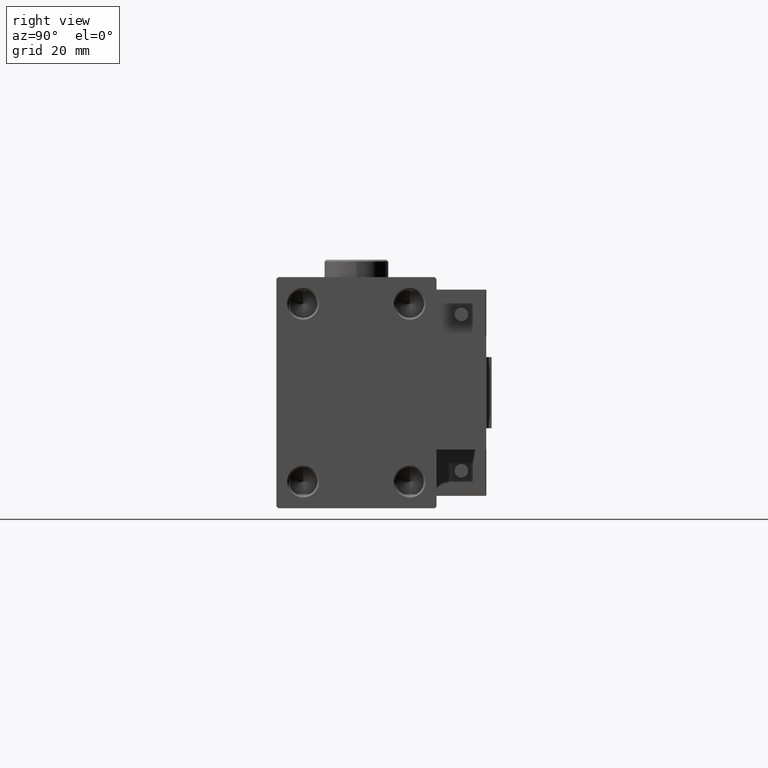
[diagram: clean part render]
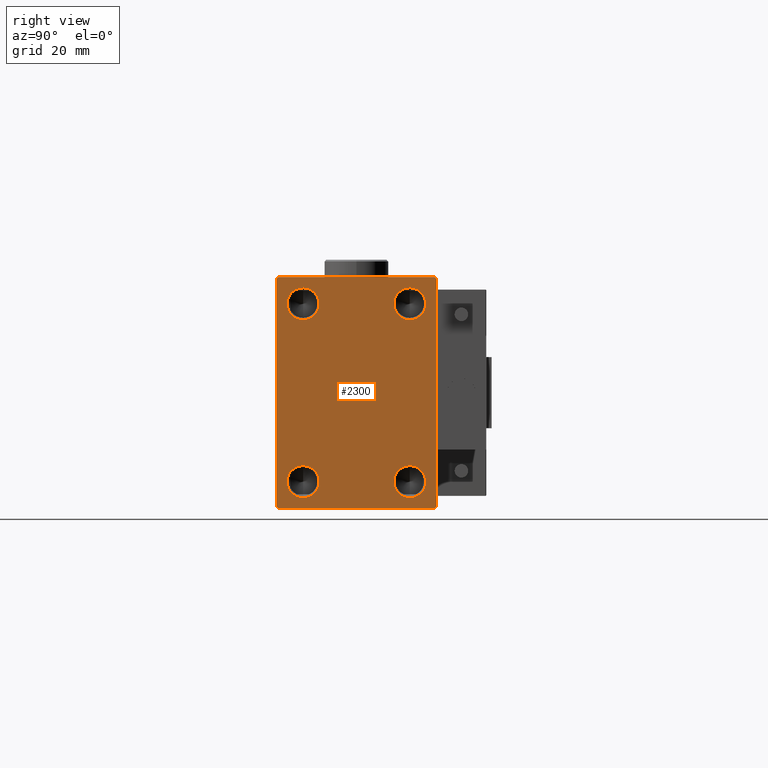
[diagram: same view with one face highlighted and labeled with its STEP entity id]
A machine part, right view. The second image highlights one B-rep face of the part: STEP entity #2300.
In plain terms, the highlighted planar face has unit normal (1, 0, 0).
Its self-contained STEP definition (entity closure, byte-faithful):
#731 = DIRECTION ( 'NONE',  ( 1.000000000000000000, -0.000000000000000000, -0.000000000000000000 ) ) ;
#746 = CARTESIAN_POINT ( 'NONE',  ( 110.0000000000000000, 15.00000000000000178, -25.00000000000000000 ) ) ;
#1815 = DIRECTION ( 'NONE',  ( 1.000000000000000000, -0.000000000000000000, -0.000000000000000000 ) ) ;
#1864 = LINE ( 'NONE', #34546, #33208 ) ;
#2300 = ADVANCED_FACE ( 'NONE', ( #40019, #11839, #28053, #3864, #43999 ), #3605, .T. ) ;
#2346 = VERTEX_POINT ( 'NONE', #24871 ) ;
#3058 = CARTESIAN_POINT ( 'NONE',  ( 110.0000000000000000, 22.50000000000000711, -32.00000000000000711 ) ) ;
#3475 = VERTEX_POINT ( 'NONE', #18715 ) ;
#3605 = PLANE ( 'NONE',  #9366 ) ;
#3648 = CIRCLE ( 'NONE', #48655, 4.500000000000003553 ) ;
#3816 = DIRECTION ( 'NONE',  ( 0.000000000000000000, 0.000000000000000000, -1.000000000000000000 ) ) ;
#3864 = FACE_BOUND ( 'NONE', #39205, .T. ) ;
#4037 = EDGE_CURVE ( 'NONE', #44564, #13014, #10815, .T. ) ;
#4295 = ORIENTED_EDGE ( 'NONE', *, *, #4037, .T. ) ;
#4351 = LINE ( 'NONE', #32557, #29032 ) ;
#5025 = CARTESIAN_POINT ( 'NONE',  ( 110.0000000000000000, 22.50000000000000000, 32.49999999999999289 ) ) ;
#5428 = DIRECTION ( 'NONE',  ( 0.000000000000000000, -0.7071067811865376918, -0.7071067811865574537 ) ) ;
#5557 = ORIENTED_EDGE ( 'NONE', *, *, #10301, .F. ) ;
#5580 = EDGE_CURVE ( 'NONE', #24625, #52514, #17767, .T. ) ;
#5912 = VERTEX_POINT ( 'NONE', #3058 ) ;
#5951 = VERTEX_POINT ( 'NONE', #43976 ) ;
#6346 = DIRECTION ( 'NONE',  ( -0.000000000000000000, -0.7071067811865474617, 0.7071067811865474617 ) ) ;
#6398 = LINE ( 'NONE', #22627, #25616 ) ;
#6459 = DIRECTION ( 'NONE',  ( 0.000000000000000000, 0.000000000000000000, -1.000000000000000000 ) ) ;
#6464 = CARTESIAN_POINT ( 'NONE',  ( 110.0000000000000000, -27.25000000000028777, 27.24999999999952749 ) ) ;
#6609 = LINE ( 'NONE', #30544, #22764 ) ;
#6630 = ORIENTED_EDGE ( 'NONE', *, *, #25823, .T. ) ;
#6664 = DIRECTION ( 'NONE',  ( -0.000000000000000000, 0.7071067811865474617, 0.7071067811865474617 ) ) ;
#6736 = VECTOR ( 'NONE', #5428, 999.9999999999998863 ) ;
#6748 = CARTESIAN_POINT ( 'NONE',  ( 110.0000000000000000, 15.00000000000000178, 20.50000000000000000 ) ) ;
#6781 = VERTEX_POINT ( 'NONE', #7076 ) ;
#7076 = CARTESIAN_POINT ( 'NONE',  ( 110.0000000000000000, 15.00000000000000178, -29.50000000000000355 ) ) ;
#7085 = CARTESIAN_POINT ( 'NONE',  ( 110.0000000000000000, 0.000000000000000000, 0.000000000000000000 ) ) ;
#7110 = DIRECTION ( 'NONE',  ( 1.000000000000000000, -0.000000000000000000, -0.000000000000000000 ) ) ;
#7578 = EDGE_LOOP ( 'NONE', ( #44888, #37945 ) ) ;
#7905 = CARTESIAN_POINT ( 'NONE',  ( 110.0000000000000000, -15.00000000000000000, 20.50000000000000355 ) ) ;
#8048 = VERTEX_POINT ( 'NONE', #45682 ) ;
#9283 = DIRECTION ( 'NONE',  ( 0.000000000000000000, 0.000000000000000000, -1.000000000000000000 ) ) ;
#9366 = AXIS2_PLACEMENT_3D ( 'NONE', #7085, #35256, #23291 ) ;
#9788 = CARTESIAN_POINT ( 'NONE',  ( 110.0000000000000000, -15.00000000000000000, 25.00000000000000000 ) ) ;
#10301 = EDGE_CURVE ( 'NONE', #6781, #40369, #52322, .T. ) ;
#10815 = LINE ( 'NONE', #22778, #48472 ) ;
#10817 = EDGE_CURVE ( 'NONE', #5951, #33908, #18366, .T. ) ;
#11700 = AXIS2_PLACEMENT_3D ( 'NONE', #9788, #1815, #9283 ) ;
#11839 = FACE_BOUND ( 'NONE', #7578, .T. ) ;
#13014 = VERTEX_POINT ( 'NONE', #47004 ) ;
#13111 = DIRECTION ( 'NONE',  ( 1.000000000000000000, -0.000000000000000000, -0.000000000000000000 ) ) ;
#14206 = CARTESIAN_POINT ( 'NONE',  ( 110.0000000000000000, -21.99999999999996447, 32.49999999999998579 ) ) ;
#15446 = VECTOR ( 'NONE', #42215, 1000.000000000000000 ) ;
#17030 = EDGE_CURVE ( 'NONE', #3475, #24625, #6609, .T. ) ;
#17393 = CARTESIAN_POINT ( 'NONE',  ( 110.0000000000000000, 15.00000000000000178, -20.50000000000000000 ) ) ;
#17767 = LINE ( 'NONE', #5025, #15446 ) ;
#17970 = VERTEX_POINT ( 'NONE', #19650 ) ;
#18366 = CIRCLE ( 'NONE', #26857, 4.500000000000003553 ) ;
#18432 = CARTESIAN_POINT ( 'NONE',  ( 110.0000000000000000, 15.00000000000000178, 25.00000000000000000 ) ) ;
#18715 = CARTESIAN_POINT ( 'NONE',  ( 110.0000000000000000, 22.50000000000000000, 31.99999999999999289 ) ) ;
#19502 = ORIENTED_EDGE ( 'NONE', *, *, #45076, .F. ) ;
#19650 = CARTESIAN_POINT ( 'NONE',  ( 110.0000000000000000, 15.00000000000000178, 29.50000000000000355 ) ) ;
#19848 = AXIS2_PLACEMENT_3D ( 'NONE', #20224, #24467, #31668 ) ;
#20224 = CARTESIAN_POINT ( 'NONE',  ( 110.0000000000000000, 15.00000000000000178, 25.00000000000000000 ) ) ;
#20250 = EDGE_CURVE ( 'NONE', #52514, #43482, #50341, .T. ) ;
#20682 = CARTESIAN_POINT ( 'NONE',  ( 110.0000000000000000, -15.00000000000000000, 25.00000000000000000 ) ) ;
#20805 = ORIENTED_EDGE ( 'NONE', *, *, #51826, .F. ) ;
#21498 = ORIENTED_EDGE ( 'NONE', *, *, #17030, .T. ) ;
#21940 = EDGE_LOOP ( 'NONE', ( #45954, #34193, #32150, #6630, #4295, #35739, #31390, #21498 ) ) ;
#22403 = ORIENTED_EDGE ( 'NONE', *, *, #49361, .F. ) ;
#22627 = CARTESIAN_POINT ( 'NONE',  ( 110.0000000000000000, 27.25000000000000355, -27.25000000000000355 ) ) ;
#22684 = DIRECTION ( 'NONE',  ( 1.000000000000000000, -0.000000000000000000, -0.000000000000000000 ) ) ;
#22750 = VERTEX_POINT ( 'NONE', #6748 ) ;
#22755 = EDGE_CURVE ( 'NONE', #38116, #2346, #37414, .T. ) ;
#22764 = VECTOR ( 'NONE', #6346, 1000.000000000000114 ) ;
#22778 = CARTESIAN_POINT ( 'NONE',  ( 110.0000000000000000, -22.49999999999999289, -32.50000000000000711 ) ) ;
#22789 = CARTESIAN_POINT ( 'NONE',  ( 110.0000000000000000, 22.00000000000000000, 32.49999999999999289 ) ) ;
#22845 = DIRECTION ( 'NONE',  ( 0.000000000000000000, -1.067522139062650425E-16, 1.000000000000000000 ) ) ;
#23291 = DIRECTION ( 'NONE',  ( 0.000000000000000000, 0.000000000000000000, -1.000000000000000000 ) ) ;
#24168 = AXIS2_PLACEMENT_3D ( 'NONE', #32799, #13111, #3816 ) ;
#24467 = DIRECTION ( 'NONE',  ( 1.000000000000000000, -0.000000000000000000, -0.000000000000000000 ) ) ;
#24572 = EDGE_CURVE ( 'NONE', #2346, #38116, #26424, .T. ) ;
#24625 = VERTEX_POINT ( 'NONE', #22789 ) ;
#24871 = CARTESIAN_POINT ( 'NONE',  ( 110.0000000000000000, -15.00000000000000000, -29.50000000000000000 ) ) ;
#25295 = CIRCLE ( 'NONE', #11700, 4.500000000000003553 ) ;
#25604 = VECTOR ( 'NONE', #25890, 1000.000000000000000 ) ;
#25616 = VECTOR ( 'NONE', #6664, 1000.000000000000114 ) ;
#25823 = EDGE_CURVE ( 'NONE', #8048, #44564, #45572, .T. ) ;
#25890 = DIRECTION ( 'NONE',  ( -0.000000000000000000, 0.7071067811865524577, -0.7071067811865426878 ) ) ;
#26424 = CIRCLE ( 'NONE', #47650, 4.500000000000003553 ) ;
#26694 = CIRCLE ( 'NONE', #24168, 4.500000000000003553 ) ;
#26857 = AXIS2_PLACEMENT_3D ( 'NONE', #20682, #731, #49376 ) ;
#27743 = DIRECTION ( 'NONE',  ( 1.000000000000000000, -0.000000000000000000, -0.000000000000000000 ) ) ;
#28053 = FACE_BOUND ( 'NONE', #46559, .T. ) ;
#28221 = EDGE_CURVE ( 'NONE', #5912, #3475, #1864, .T. ) ;
#28726 = EDGE_CURVE ( 'NONE', #43482, #8048, #4351, .T. ) ;
#29032 = VECTOR ( 'NONE', #48749, 1000.000000000000000 ) ;
#29160 = EDGE_LOOP ( 'NONE', ( #22403, #19502 ) ) ;
#30544 = CARTESIAN_POINT ( 'NONE',  ( 110.0000000000000000, 27.24999999999999289, 27.24999999999999289 ) ) ;
#31293 = CARTESIAN_POINT ( 'NONE',  ( 110.0000000000000000, -15.00000000000000000, -25.00000000000000000 ) ) ;
#31390 = ORIENTED_EDGE ( 'NONE', *, *, #28221, .T. ) ;
#31668 = DIRECTION ( 'NONE',  ( 0.000000000000000000, 0.000000000000000000, -1.000000000000000000 ) ) ;
#31741 = CARTESIAN_POINT ( 'NONE',  ( 110.0000000000000000, -15.00000000000000000, -25.00000000000000000 ) ) ;
#32150 = ORIENTED_EDGE ( 'NONE', *, *, #28726, .T. ) ;
#32557 = CARTESIAN_POINT ( 'NONE',  ( 110.0000000000000000, -22.49999999999999289, 32.49999999999998579 ) ) ;
#32799 = CARTESIAN_POINT ( 'NONE',  ( 110.0000000000000000, 15.00000000000000178, -25.00000000000000000 ) ) ;
#33110 = CARTESIAN_POINT ( 'NONE',  ( 110.0000000000000000, -27.24999999999984368, -27.25000000000022027 ) ) ;
#33208 = VECTOR ( 'NONE', #22845, 1000.000000000000000 ) ;
#33760 = EDGE_CURVE ( 'NONE', #33908, #5951, #25295, .T. ) ;
#33908 = VERTEX_POINT ( 'NONE', #7905 ) ;
#34193 = ORIENTED_EDGE ( 'NONE', *, *, #20250, .T. ) ;
#34546 = CARTESIAN_POINT ( 'NONE',  ( 110.0000000000000000, 22.50000000000000711, -32.50000000000000711 ) ) ;
#34937 = DIRECTION ( 'NONE',  ( 0.000000000000000000, 0.000000000000000000, -1.000000000000000000 ) ) ;
#35256 = DIRECTION ( 'NONE',  ( 1.000000000000000000, 0.000000000000000000, 0.000000000000000000 ) ) ;
#35739 = ORIENTED_EDGE ( 'NONE', *, *, #45412, .T. ) ;
#36634 = DIRECTION ( 'NONE',  ( 0.000000000000000000, 0.000000000000000000, -1.000000000000000000 ) ) ;
#37414 = CIRCLE ( 'NONE', #41615, 4.500000000000003553 ) ;
#37945 = ORIENTED_EDGE ( 'NONE', *, *, #33760, .F. ) ;
#38116 = VERTEX_POINT ( 'NONE', #48296 ) ;
#38977 = DIRECTION ( 'NONE',  ( 0.000000000000000000, 1.000000000000000000, 0.000000000000000000 ) ) ;
#39205 = EDGE_LOOP ( 'NONE', ( #20805, #5557 ) ) ;
#40019 = FACE_BOUND ( 'NONE', #29160, .T. ) ;
#40215 = CIRCLE ( 'NONE', #19848, 4.500000000000003553 ) ;
#40369 = VERTEX_POINT ( 'NONE', #17393 ) ;
#40449 = AXIS2_PLACEMENT_3D ( 'NONE', #746, #48324, #36634 ) ;
#41615 = AXIS2_PLACEMENT_3D ( 'NONE', #31741, #27743, #34937 ) ;
#42215 = DIRECTION ( 'NONE',  ( 0.000000000000000000, -1.000000000000000000, -1.541976423090495633E-16 ) ) ;
#43482 = VERTEX_POINT ( 'NONE', #50775 ) ;
#43976 = CARTESIAN_POINT ( 'NONE',  ( 110.0000000000000000, -15.00000000000000000, 29.50000000000000000 ) ) ;
#43999 = FACE_OUTER_BOUND ( 'NONE', #21940, .T. ) ;
#44222 = ORIENTED_EDGE ( 'NONE', *, *, #22755, .F. ) ;
#44564 = VERTEX_POINT ( 'NONE', #51839 ) ;
#44888 = ORIENTED_EDGE ( 'NONE', *, *, #10817, .F. ) ;
#45076 = EDGE_CURVE ( 'NONE', #22750, #17970, #3648, .T. ) ;
#45412 = EDGE_CURVE ( 'NONE', #13014, #5912, #6398, .T. ) ;
#45572 = LINE ( 'NONE', #33110, #25604 ) ;
#45682 = CARTESIAN_POINT ( 'NONE',  ( 110.0000000000000000, -22.49999999999999289, -32.00000000000001421 ) ) ;
#45954 = ORIENTED_EDGE ( 'NONE', *, *, #5580, .T. ) ;
#46497 = ORIENTED_EDGE ( 'NONE', *, *, #24572, .F. ) ;
#46559 = EDGE_LOOP ( 'NONE', ( #44222, #46497 ) ) ;
#47004 = CARTESIAN_POINT ( 'NONE',  ( 110.0000000000000000, 21.99999999999999289, -32.50000000000000711 ) ) ;
#47650 = AXIS2_PLACEMENT_3D ( 'NONE', #31293, #7110, #50694 ) ;
#48296 = CARTESIAN_POINT ( 'NONE',  ( 110.0000000000000000, -15.00000000000000000, -20.50000000000000355 ) ) ;
#48324 = DIRECTION ( 'NONE',  ( 1.000000000000000000, -0.000000000000000000, -0.000000000000000000 ) ) ;
#48472 = VECTOR ( 'NONE', #38977, 1000.000000000000000 ) ;
#48655 = AXIS2_PLACEMENT_3D ( 'NONE', #18432, #22684, #6459 ) ;
#48749 = DIRECTION ( 'NONE',  ( 0.000000000000000000, 0.000000000000000000, -1.000000000000000000 ) ) ;
#49361 = EDGE_CURVE ( 'NONE', #17970, #22750, #40215, .T. ) ;
#49376 = DIRECTION ( 'NONE',  ( 0.000000000000000000, 0.000000000000000000, -1.000000000000000000 ) ) ;
#50341 = LINE ( 'NONE', #6464, #6736 ) ;
#50694 = DIRECTION ( 'NONE',  ( 0.000000000000000000, 0.000000000000000000, -1.000000000000000000 ) ) ;
#50775 = CARTESIAN_POINT ( 'NONE',  ( 110.0000000000000000, -22.49999999999999289, 31.99999999999995737 ) ) ;
#51826 = EDGE_CURVE ( 'NONE', #40369, #6781, #26694, .T. ) ;
#51839 = CARTESIAN_POINT ( 'NONE',  ( 110.0000000000000000, -21.99999999999999289, -32.50000000000000711 ) ) ;
#52322 = CIRCLE ( 'NONE', #40449, 4.500000000000003553 ) ;
#52514 = VERTEX_POINT ( 'NONE', #14206 ) ;